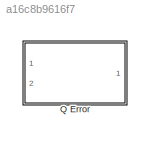
MODEL slx_a16c8b9616f7
KIND library
CONFIG AbsTol = auto
CONFIG FixedStep = auto
CONFIG MaxStep = auto
CONFIG MinStep = auto
CONFIG RelTol = 1e-3
CONFIG SampleTimeConstraint = Unconstrained
CONFIG Solver = VariableStepAuto
CONFIG SolverMode = Auto
CONFIG SolverName = VariableStepAuto
CONFIG StartTime = 0.0
CONFIG StopTime = 10.0
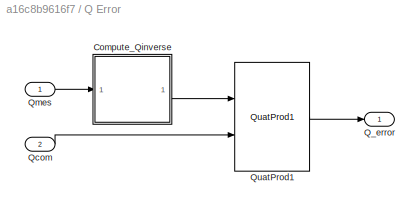
BLOCK [SubSystem] Q Error
  Ports = [2, 1]
  RequestExecContextInheritance = off
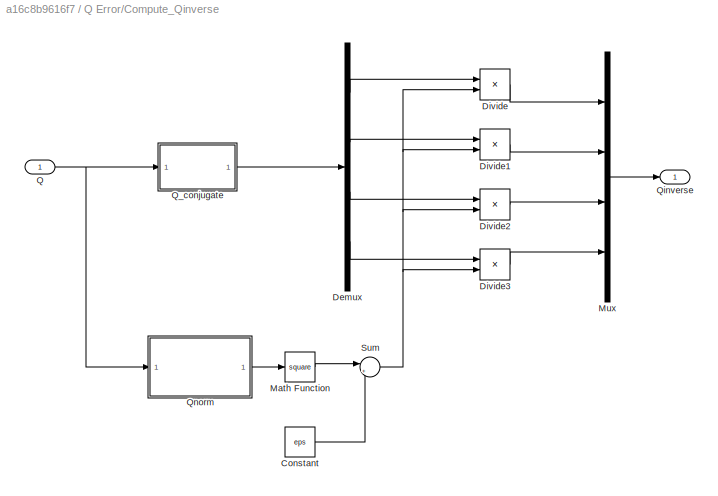
BLOCK [SubSystem] Q Error/Compute_Qinverse
  Ports = [1, 1]
  RequestExecContextInheritance = off
BLOCK [Constant] Q Error/Compute_Qinverse/Constant
  SampleTime = 1/ConfParam.confES.frequency
  Value = eps
BLOCK [Demux] Q Error/Compute_Qinverse/Demux
  DisplayOption = bar
  Ports = [1, 4]
BLOCK [Product] Q Error/Compute_Qinverse/Divide
  InputSameDT = off
  Inputs = */
  OutDataTypeStr = Inherit: Inherit via internal rule
  Ports = [2, 1]
  RndMeth = Floor
  SaturateOnIntegerOverflow = off
BLOCK [Product] Q Error/Compute_Qinverse/Divide1
  InputSameDT = off
  Inputs = */
  OutDataTypeStr = Inherit: Inherit via internal rule
  Ports = [2, 1]
  RndMeth = Floor
  SaturateOnIntegerOverflow = off
BLOCK [Product] Q Error/Compute_Qinverse/Divide2
  InputSameDT = off
  Inputs = */
  OutDataTypeStr = Inherit: Inherit via internal rule
  Ports = [2, 1]
  RndMeth = Floor
  SaturateOnIntegerOverflow = off
BLOCK [Product] Q Error/Compute_Qinverse/Divide3
  InputSameDT = off
  Inputs = */
  OutDataTypeStr = Inherit: Inherit via internal rule
  Ports = [2, 1]
  RndMeth = Floor
  SaturateOnIntegerOverflow = off
BLOCK [Math] Q Error/Compute_Qinverse/Math Function
  Operator = square
  Ports = [1, 1]
BLOCK [Mux] Q Error/Compute_Qinverse/Mux
  DisplayOption = bar
  Ports = [4, 1]
BLOCK [Inport] Q Error/Compute_Qinverse/Q
  IconDisplay = Port number
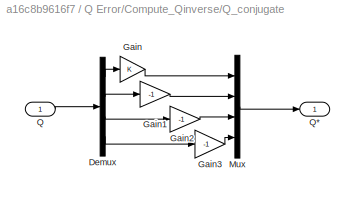
BLOCK [SubSystem] Q Error/Compute_Qinverse/Q_conjugate
  Ports = [1, 1]
  RequestExecContextInheritance = off
BLOCK [Demux] Q Error/Compute_Qinverse/Q_conjugate/Demux
  DisplayOption = bar
  Ports = [1, 4]
BLOCK [Gain] Q Error/Compute_Qinverse/Q_conjugate/Gain
  OutDataTypeStr = Inherit: Inherit via internal rule
  ParamDataTypeStr = Inherit: Inherit via internal rule
  SaturateOnIntegerOverflow = off
BLOCK [Gain] Q Error/Compute_Qinverse/Q_conjugate/Gain1
  Gain = -1
  OutDataTypeStr = Inherit: Inherit via internal rule
  ParamDataTypeStr = Inherit: Inherit via internal rule
  SaturateOnIntegerOverflow = off
BLOCK [Gain] Q Error/Compute_Qinverse/Q_conjugate/Gain2
  Gain = -1
  OutDataTypeStr = Inherit: Inherit via internal rule
  ParamDataTypeStr = Inherit: Inherit via internal rule
  SaturateOnIntegerOverflow = off
BLOCK [Gain] Q Error/Compute_Qinverse/Q_conjugate/Gain3
  Gain = -1
  OutDataTypeStr = Inherit: Inherit via internal rule
  ParamDataTypeStr = Inherit: Inherit via internal rule
  SaturateOnIntegerOverflow = off
BLOCK [Mux] Q Error/Compute_Qinverse/Q_conjugate/Mux
  DisplayOption = bar
  Ports = [4, 1]
BLOCK [Inport] Q Error/Compute_Qinverse/Q_conjugate/Q
  IconDisplay = Port number
BLOCK [Outport] Q Error/Compute_Qinverse/Q_conjugate/Q*
  IconDisplay = Port number
BLOCK [Outport] Q Error/Compute_Qinverse/Qinverse
  IconDisplay = Port number
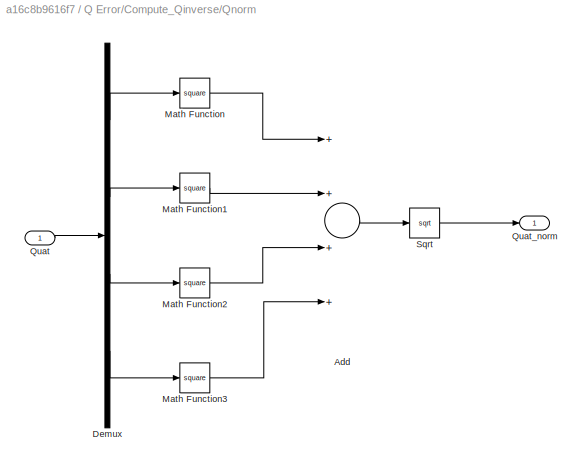
BLOCK [SubSystem] Q Error/Compute_Qinverse/Qnorm
  Ports = [1, 1]
  RequestExecContextInheritance = off
BLOCK [Sum] Q Error/Compute_Qinverse/Qnorm/Add
  InputSameDT = off
  Inputs = ++++
  OutDataTypeStr = Inherit: Inherit via internal rule
  Ports = [4, 1]
  SaturateOnIntegerOverflow = off
BLOCK [Demux] Q Error/Compute_Qinverse/Qnorm/Demux
  DisplayOption = bar
  Ports = [1, 4]
BLOCK [Math] Q Error/Compute_Qinverse/Qnorm/Math Function
  Operator = square
  Ports = [1, 1]
BLOCK [Math] Q Error/Compute_Qinverse/Qnorm/Math Function1
  Operator = square
  Ports = [1, 1]
BLOCK [Math] Q Error/Compute_Qinverse/Qnorm/Math Function2
  Operator = square
  Ports = [1, 1]
BLOCK [Math] Q Error/Compute_Qinverse/Qnorm/Math Function3
  Operator = square
  Ports = [1, 1]
BLOCK [Inport] Q Error/Compute_Qinverse/Qnorm/Quat
  IconDisplay = Port number
BLOCK [Outport] Q Error/Compute_Qinverse/Qnorm/Quat_norm
  IconDisplay = Port number
BLOCK [Sqrt] Q Error/Compute_Qinverse/Qnorm/Sqrt
BLOCK [Sum] Q Error/Compute_Qinverse/Sum
  IconShape = round
  InputSameDT = off
  Inputs = |++
  OutDataTypeStr = Inherit: Inherit via internal rule
  Ports = [2, 1]
  SaturateOnIntegerOverflow = off
BLOCK [Outport] Q Error/Q_error
  IconDisplay = Port number
BLOCK [Inport] Q Error/Qcom
  IconDisplay = Port number
  Port = 2
BLOCK [Inport] Q Error/Qmes
  IconDisplay = Port number
BLOCK [Reference] Q Error/QuatProd1  REF=Qprod/QuatProd1
  Ports = [2, 1]
  SourceBlock = Qprod/QuatProd1
  SourceType = SubSystem
LINE Q Error/Compute_Qinverse/Constant:1 -> Q Error/Compute_Qinverse/Sum:2
LINE Q Error/Compute_Qinverse/Demux:1 -> Q Error/Compute_Qinverse/Divide:1
LINE Q Error/Compute_Qinverse/Demux:2 -> Q Error/Compute_Qinverse/Divide1:1
LINE Q Error/Compute_Qinverse/Demux:3 -> Q Error/Compute_Qinverse/Divide2:1
LINE Q Error/Compute_Qinverse/Demux:4 -> Q Error/Compute_Qinverse/Divide3:1
LINE Q Error/Compute_Qinverse/Divide1:1 -> Q Error/Compute_Qinverse/Mux:2
LINE Q Error/Compute_Qinverse/Divide2:1 -> Q Error/Compute_Qinverse/Mux:3
LINE Q Error/Compute_Qinverse/Divide3:1 -> Q Error/Compute_Qinverse/Mux:4
LINE Q Error/Compute_Qinverse/Divide:1 -> Q Error/Compute_Qinverse/Mux:1
LINE Q Error/Compute_Qinverse/Math Function:1 -> Q Error/Compute_Qinverse/Sum:1
LINE Q Error/Compute_Qinverse/Mux:1 -> Q Error/Compute_Qinverse/Qinverse:1
NET Q Error/Compute_Qinverse/Q:1 -> Q Error/Compute_Qinverse/Q_conjugate:1, Q Error/Compute_Qinverse/Qnorm:1
LINE Q Error/Compute_Qinverse/Q_conjugate/Demux:1 -> Q Error/Compute_Qinverse/Q_conjugate/Gain:1
LINE Q Error/Compute_Qinverse/Q_conjugate/Demux:2 -> Q Error/Compute_Qinverse/Q_conjugate/Gain1:1
LINE Q Error/Compute_Qinverse/Q_conjugate/Demux:3 -> Q Error/Compute_Qinverse/Q_conjugate/Gain2:1
LINE Q Error/Compute_Qinverse/Q_conjugate/Demux:4 -> Q Error/Compute_Qinverse/Q_conjugate/Gain3:1
LINE Q Error/Compute_Qinverse/Q_conjugate/Gain1:1 -> Q Error/Compute_Qinverse/Q_conjugate/Mux:2
LINE Q Error/Compute_Qinverse/Q_conjugate/Gain2:1 -> Q Error/Compute_Qinverse/Q_conjugate/Mux:3
LINE Q Error/Compute_Qinverse/Q_conjugate/Gain3:1 -> Q Error/Compute_Qinverse/Q_conjugate/Mux:4
LINE Q Error/Compute_Qinverse/Q_conjugate/Gain:1 -> Q Error/Compute_Qinverse/Q_conjugate/Mux:1
LINE Q Error/Compute_Qinverse/Q_conjugate/Mux:1 -> Q Error/Compute_Qinverse/Q_conjugate/Q*:1
LINE Q Error/Compute_Qinverse/Q_conjugate/Q:1 -> Q Error/Compute_Qinverse/Q_conjugate/Demux:1
LINE Q Error/Compute_Qinverse/Q_conjugate:1 -> Q Error/Compute_Qinverse/Demux:1
LINE Q Error/Compute_Qinverse/Qnorm/Add:1 -> Q Error/Compute_Qinverse/Qnorm/Sqrt:1
LINE Q Error/Compute_Qinverse/Qnorm/Demux:1 -> Q Error/Compute_Qinverse/Qnorm/Math Function:1
LINE Q Error/Compute_Qinverse/Qnorm/Demux:2 -> Q Error/Compute_Qinverse/Qnorm/Math Function1:1
LINE Q Error/Compute_Qinverse/Qnorm/Demux:3 -> Q Error/Compute_Qinverse/Qnorm/Math Function2:1
LINE Q Error/Compute_Qinverse/Qnorm/Demux:4 -> Q Error/Compute_Qinverse/Qnorm/Math Function3:1
LINE Q Error/Compute_Qinverse/Qnorm/Math Function1:1 -> Q Error/Compute_Qinverse/Qnorm/Add:2
LINE Q Error/Compute_Qinverse/Qnorm/Math Function2:1 -> Q Error/Compute_Qinverse/Qnorm/Add:3
LINE Q Error/Compute_Qinverse/Qnorm/Math Function3:1 -> Q Error/Compute_Qinverse/Qnorm/Add:4
LINE Q Error/Compute_Qinverse/Qnorm/Math Function:1 -> Q Error/Compute_Qinverse/Qnorm/Add:1
LINE Q Error/Compute_Qinverse/Qnorm/Quat:1 -> Q Error/Compute_Qinverse/Qnorm/Demux:1
LINE Q Error/Compute_Qinverse/Qnorm/Sqrt:1 -> Q Error/Compute_Qinverse/Qnorm/Quat_norm:1
LINE Q Error/Compute_Qinverse/Qnorm:1 -> Q Error/Compute_Qinverse/Math Function:1
NET Q Error/Compute_Qinverse/Sum:1 -> Q Error/Compute_Qinverse/Divide1:2, Q Error/Compute_Qinverse/Divide2:2, Q Error/Compute_Qinverse/Divide3:2, Q Error/Compute_Qinverse/Divide:2
LINE Q Error/Compute_Qinverse:1 -> Q Error/QuatProd1:1
LINE Q Error/Qcom:1 -> Q Error/QuatProd1:2
LINE Q Error/Qmes:1 -> Q Error/Compute_Qinverse:1
LINE Q Error/QuatProd1:1 -> Q Error/Q_error:1
note: NET lines group one-source signal fan-out (src -> all destinations, sorted); 1:1 wires keep LINE
